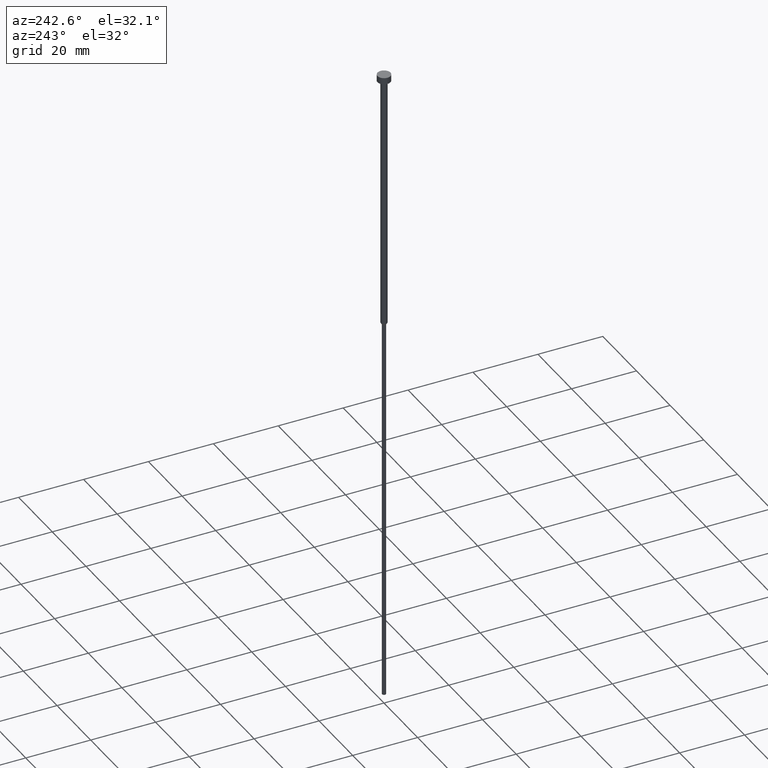
[diagram: clean part render]
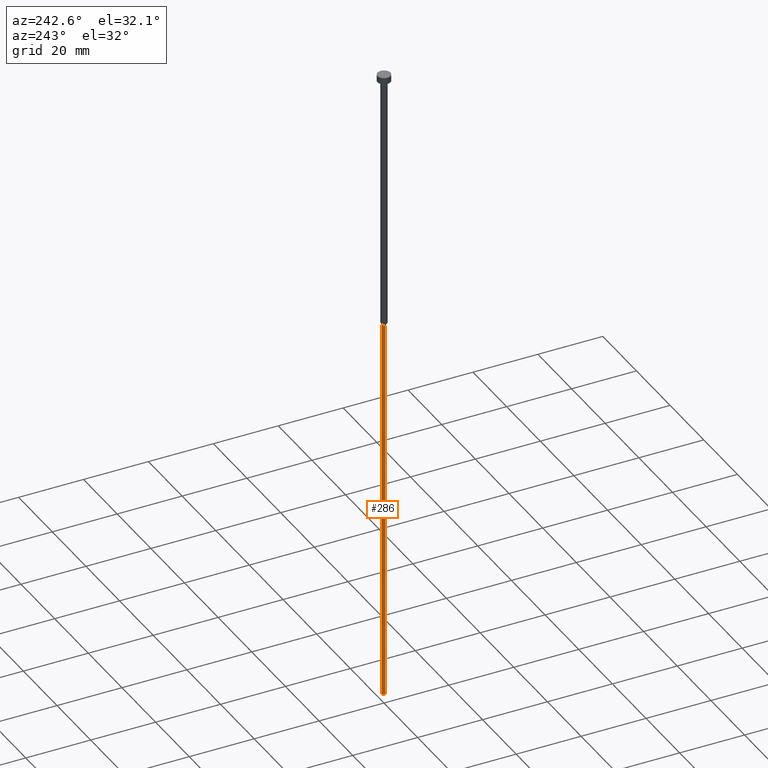
[diagram: same view with one face highlighted and labeled with its STEP entity id]
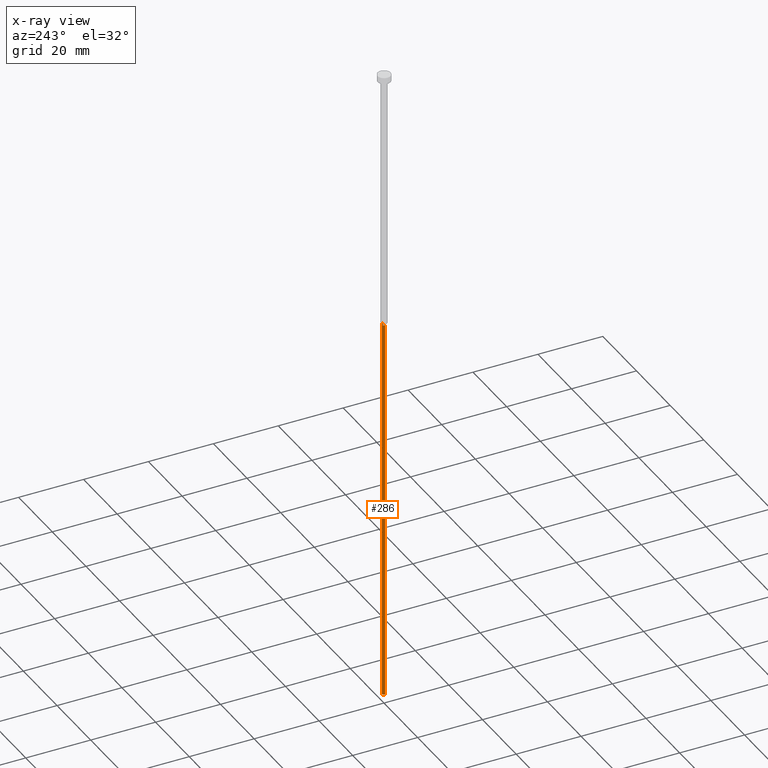
[diagram: x-ray of the same camera — body ghosted, the highlighted face saturated]
A machine part, auxiliary view. The second image highlights one B-rep face of the part: STEP entity #286.
The next image is the same camera in x-ray: the body ghosted, the highlighted face saturated — about 0% of this face is hidden behind the body in this view.
In plain terms, the highlighted cylindrical surface (edge-blend (fillet) strip) has radius 0.6 mm, axis along (-0, -0, 1).
Its self-contained STEP definition (entity closure, byte-faithful):
#7 = DIRECTION ( 'NONE',  ( 1.000000000000000000, 0.000000000000000000, 0.000000000000000000 ) ) ;
#11 = ORIENTED_EDGE ( 'NONE', *, *, #57, .T. ) ;
#36 = ORIENTED_EDGE ( 'NONE', *, *, #300, .F. ) ;
#57 = EDGE_CURVE ( 'NONE', #333, #276, #295, .T. ) ;
#58 = DIRECTION ( 'NONE',  ( -0.000000000000000000, -0.000000000000000000, 1.000000000000000000 ) ) ;
#65 = CIRCLE ( 'NONE', #317, 0.5999999999999998668 ) ;
#68 = ORIENTED_EDGE ( 'NONE', *, *, #216, .T. ) ;
#70 = ORIENTED_EDGE ( 'NONE', *, *, #250, .F. ) ;
#84 = CARTESIAN_POINT ( 'NONE',  ( 0.5999999999999998668, 0.000000000000000000, -80.69282032302756136 ) ) ;
#102 = AXIS2_PLACEMENT_3D ( 'NONE', #198, #58, #7 ) ;
#114 = VECTOR ( 'NONE', #301, 1000.000000000000000 ) ;
#117 = CARTESIAN_POINT ( 'NONE',  ( 0.000000000000000000, 0.000000000000000000, 0.000000000000000000 ) ) ;
#122 = VERTEX_POINT ( 'NONE', #186 ) ;
#162 = CIRCLE ( 'NONE', #102, 0.5999999999999998668 ) ;
#173 = FACE_OUTER_BOUND ( 'NONE', #226, .T. ) ;
#177 = CARTESIAN_POINT ( 'NONE',  ( -0.5999999999999998668, 7.347880794884117764E-17, -80.69282032302756136 ) ) ;
#180 = CYLINDRICAL_SURFACE ( 'NONE', #256, 0.5999999999999998668 ) ;
#186 = CARTESIAN_POINT ( 'NONE',  ( 0.5999999999999998668, 0.000000000000000000, -200.0000000000000000 ) ) ;
#193 = CARTESIAN_POINT ( 'NONE',  ( -0.5999999999999998668, 7.347880794884117764E-17, -200.0000000000000000 ) ) ;
#198 = CARTESIAN_POINT ( 'NONE',  ( 0.000000000000000000, 0.000000000000000000, -200.0000000000000000 ) ) ;
#213 = DIRECTION ( 'NONE',  ( -0.000000000000000000, -0.000000000000000000, 1.000000000000000000 ) ) ;
#216 = EDGE_CURVE ( 'NONE', #122, #333, #162, .T. ) ;
#222 = DIRECTION ( 'NONE',  ( -0.000000000000000000, -0.000000000000000000, 1.000000000000000000 ) ) ;
#226 = EDGE_LOOP ( 'NONE', ( #68, #11, #36, #70 ) ) ;
#250 = EDGE_CURVE ( 'NONE', #122, #309, #334, .T. ) ;
#253 = VECTOR ( 'NONE', #213, 1000.000000000000000 ) ;
#256 = AXIS2_PLACEMENT_3D ( 'NONE', #117, #327, #303 ) ;
#258 = CARTESIAN_POINT ( 'NONE',  ( 0.000000000000000000, 0.000000000000000000, -80.69282032302756136 ) ) ;
#260 = DIRECTION ( 'NONE',  ( 1.000000000000000000, 0.000000000000000000, 0.000000000000000000 ) ) ;
#276 = VERTEX_POINT ( 'NONE', #177 ) ;
#286 = ADVANCED_FACE ( 'NONE', ( #173 ), #180, .T. ) ;
#295 = LINE ( 'NONE', #319, #253 ) ;
#300 = EDGE_CURVE ( 'NONE', #309, #276, #65, .T. ) ;
#301 = DIRECTION ( 'NONE',  ( -0.000000000000000000, -0.000000000000000000, 1.000000000000000000 ) ) ;
#303 = DIRECTION ( 'NONE',  ( 1.000000000000000000, 0.000000000000000000, 0.000000000000000000 ) ) ;
#309 = VERTEX_POINT ( 'NONE', #84 ) ;
#310 = CARTESIAN_POINT ( 'NONE',  ( 0.5999999999999998668, 0.000000000000000000, 0.000000000000000000 ) ) ;
#317 = AXIS2_PLACEMENT_3D ( 'NONE', #258, #222, #260 ) ;
#319 = CARTESIAN_POINT ( 'NONE',  ( -0.5999999999999998668, 7.347880794884117764E-17, 0.000000000000000000 ) ) ;
#327 = DIRECTION ( 'NONE',  ( -0.000000000000000000, -0.000000000000000000, 1.000000000000000000 ) ) ;
#333 = VERTEX_POINT ( 'NONE', #193 ) ;
#334 = LINE ( 'NONE', #310, #114 ) ;